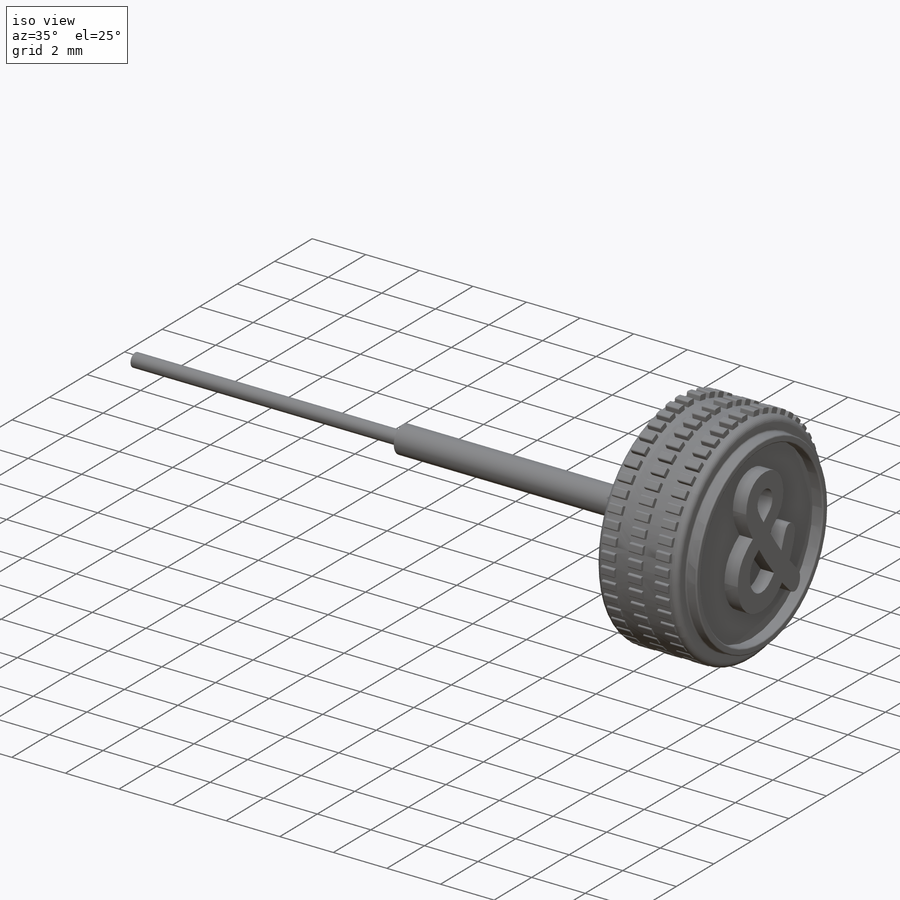
[diagram: iso view]
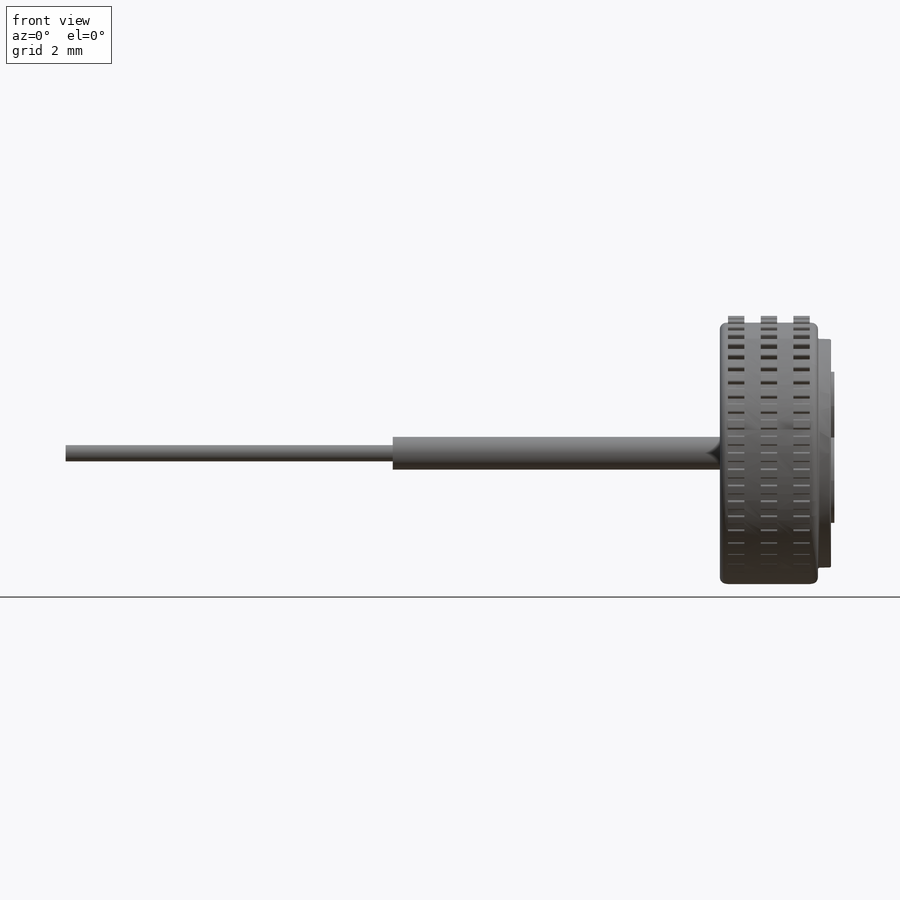
[diagram: front view]
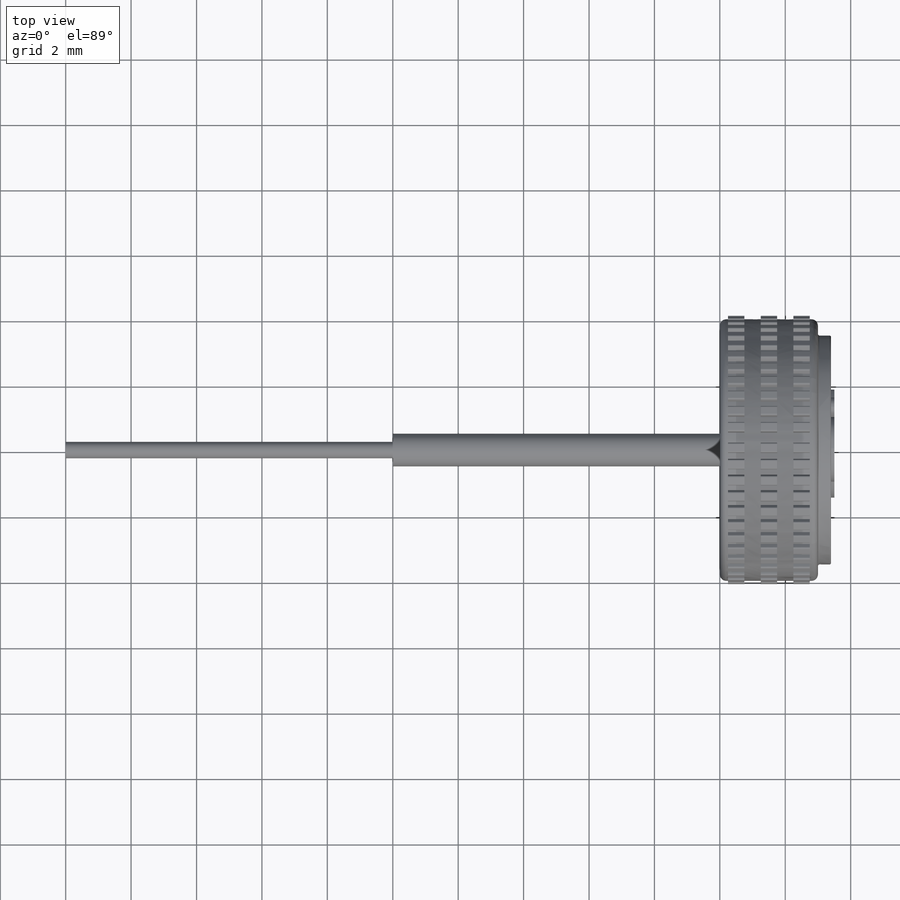
[diagram: top view]
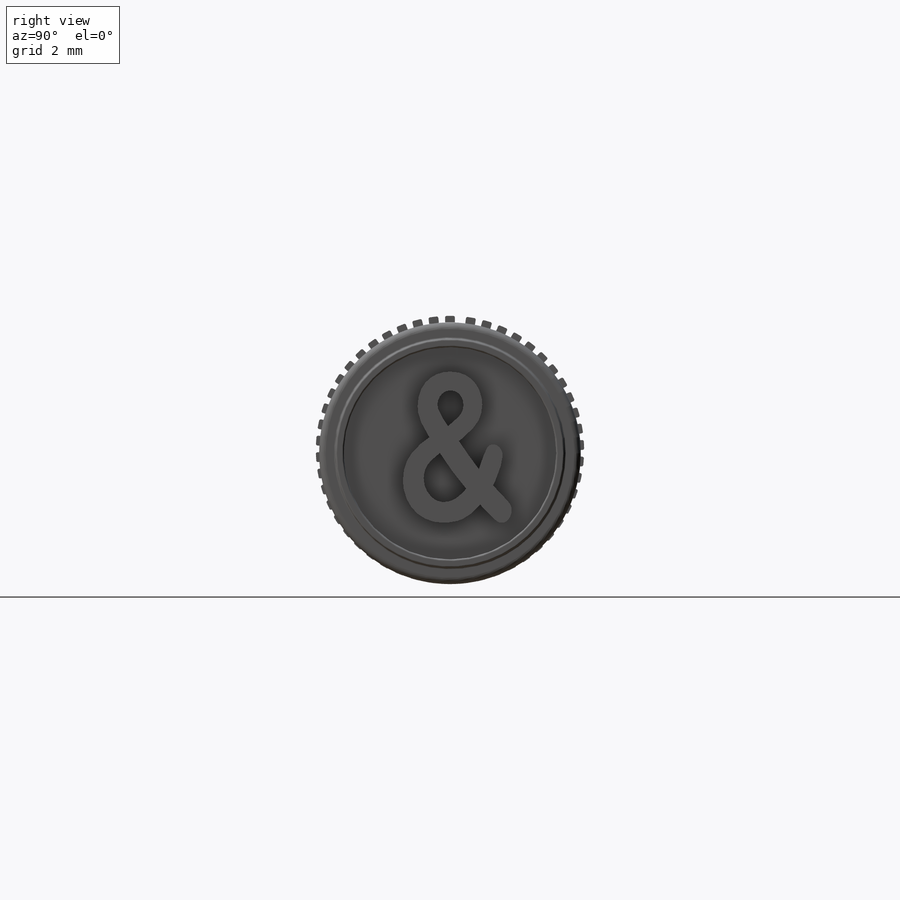
[diagram: right view]
SOLIDWORKS PART (.sldprt)
format: sldprt  version: not decoded by parser v0  size: 1,066,496 bytes
history: native  units: mm
features: fillet x7, sketch x6, extrude x6, plane x3, material x1 (+8 scaffold rows collapsed)
feature tree (31):
  scaffold x8  (default folders/planes/origin — collapsed)
  material  "Material <sin especificar>"
  plane  "Alzado"
  plane  "Planta"
  plane  "Vista lateral"
  sketch  "Croquis1"  dims[D1=8.0mm]
  extrude  "Saliente-Extruir1"  Depth=3mm
  sketch  "Croquis2"  dims[c1.D1=0.5mm c1.D2=0.4mm c1.D3=0.5mm c1.D4=0.5mm c1.D5=~0.303778mm c2.D5=90.0deg c3.D5=0.4mm]
  extrude  "Saliente-Extruir2"  Depth=0.3mm
  fillet  "Redondeo3"  Radius=0.05mm
  fillet  "Redondeo4"  Radius=0.05mm
  fillet  "Redondeo5"  Radius=0.05mm
  fillet  "Redondeo1"  Radius=0.2mm
  fillet  "Redondeo2"  Radius=0.2mm
  sketch  "Croquis5"  dims[D1=1.0mm]
  extrude  "Saliente-Extruir3"  Depth=10mm
  sketch  "Croquis6"  dims[D1=0.5mm]
  extrude  "Saliente-Extruir4"  Depth=10mm
  sketch  "Croquis7"  dims[D1=7.0mm D2=6.5mm]
  extrude  "Saliente-Extruir5"  Depth=0.4mm
  fillet  "Redondeo6"  Radius=0.05mm
  fillet  "Redondeo7"  Radius=0.05mm
  sketch  "Croquis8"
  extrude  "Saliente-Extruir6"  Depth=0.5mm
decode coverage: 18 of 19 modeling features carry decoded parameters
note: ~ marks probable driven/reference dimensions
note: suppression state not decoded; provenance and decode notes live in map.json
